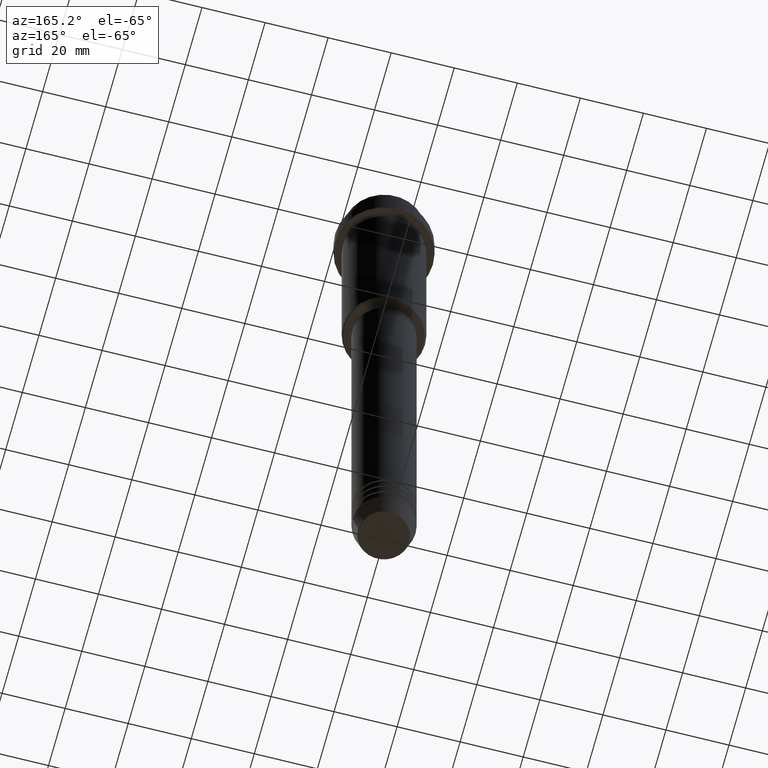
[diagram: clean part render]
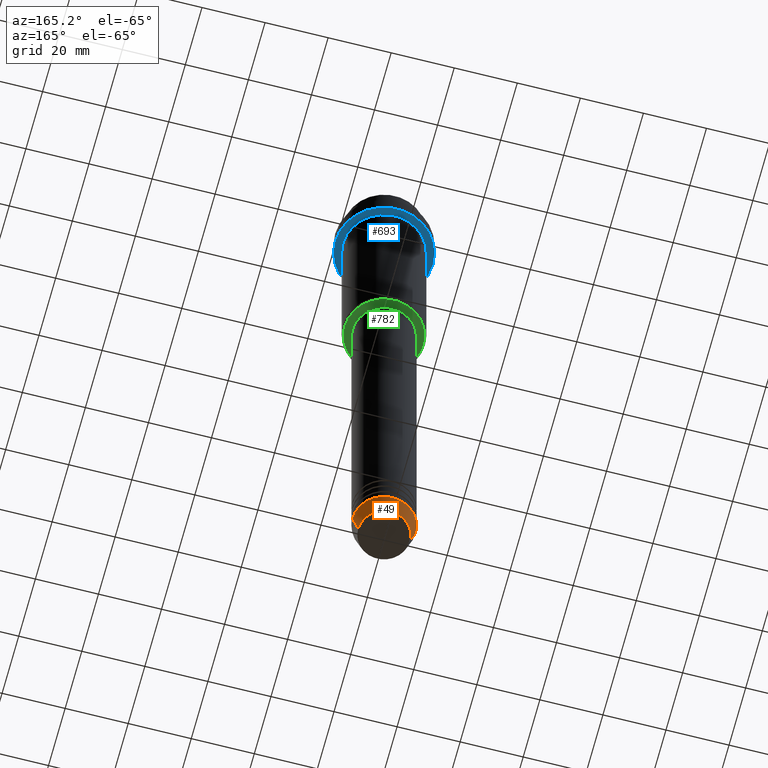
[diagram: same view with three faces highlighted in distinct colors, each labeled with its STEP entity id]
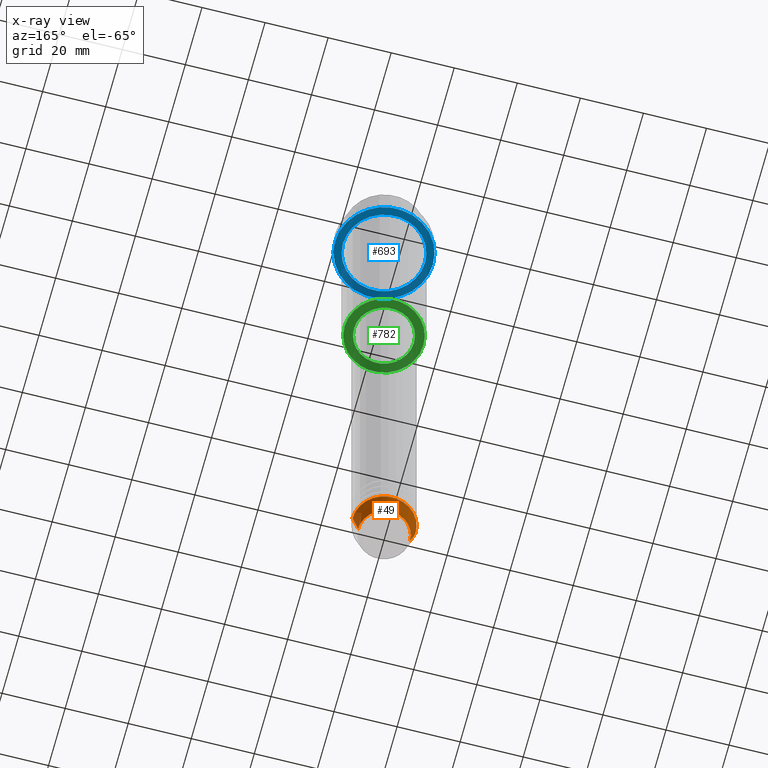
[diagram: x-ray of the same camera — body ghosted, the three highlighted faces saturated]
A machine part, auxiliary view with three faces highlighted in distinct colors.
The next image is the same camera in x-ray (body ghosted, the three faces saturated) — at least one of them is partly hidden behind the body in this view.
Their STEP definitions:

[orange] entity #49 — the highlighted conical surface has half-angle 15 deg.
#49 = ADVANCED_FACE ( 'NONE', ( #1083 ), #1212, .T. ) ;
#68 = VECTOR ( 'NONE', #1221, 1000.000000000000114 ) ;
#85 = ORIENTED_EDGE ( 'NONE', *, *, #961, .T. ) ;
#86 = EDGE_CURVE ( 'NONE', #666, #1099, #755, .T. ) ;
#88 = AXIS2_PLACEMENT_3D ( 'NONE', #519, #979, #554 ) ;
#148 = DIRECTION ( 'NONE',  ( 1.000000000000000000, 0.000000000000000000, 0.000000000000000000 ) ) ;
#198 = AXIS2_PLACEMENT_3D ( 'NONE', #1034, #1247, #1366 ) ;
#236 = CARTESIAN_POINT ( 'NONE',  ( 10.00000000000000000, 0.000000000000000000, -212.9999999999999716 ) ) ;
#318 = ORIENTED_EDGE ( 'NONE', *, *, #1256, .T. ) ;
#519 = CARTESIAN_POINT ( 'NONE',  ( 0.000000000000000000, 0.000000000000000000, -212.9999999999999716 ) ) ;
#525 = DIRECTION ( 'NONE',  ( 0.2588190451025214611, 0.000000000000000000, 0.9659258262890679791 ) ) ;
#554 = DIRECTION ( 'NONE',  ( 1.000000000000000000, 0.000000000000000000, 0.000000000000000000 ) ) ;
#569 = CIRCLE ( 'NONE', #198, 8.223655072137189492 ) ;
#602 = CARTESIAN_POINT ( 'NONE',  ( 10.00000000000000000, 0.000000000000000000, -212.9999999999999716 ) ) ;
#639 = VECTOR ( 'NONE', #525, 1000.000000000000114 ) ;
#665 = VERTEX_POINT ( 'NONE', #862 ) ;
#666 = VERTEX_POINT ( 'NONE', #602 ) ;
#755 = CIRCLE ( 'NONE', #924, 10.00000000000000000 ) ;
#796 = CARTESIAN_POINT ( 'NONE',  ( -10.00000000000000000, 1.224646799147353256E-15, -212.9999999999999716 ) ) ;
#838 = EDGE_CURVE ( 'NONE', #665, #666, #1304, .T. ) ;
#862 = CARTESIAN_POINT ( 'NONE',  ( 8.223655072137189492, 0.000000000000000000, -219.6294095225512137 ) ) ;
#916 = ORIENTED_EDGE ( 'NONE', *, *, #838, .F. ) ;
#924 = AXIS2_PLACEMENT_3D ( 'NONE', #1109, #1025, #148 ) ;
#961 = EDGE_CURVE ( 'NONE', #665, #1190, #569, .T. ) ;
#979 = DIRECTION ( 'NONE',  ( -0.000000000000000000, -0.000000000000000000, 1.000000000000000000 ) ) ;
#1025 = DIRECTION ( 'NONE',  ( -0.000000000000000000, -0.000000000000000000, 1.000000000000000000 ) ) ;
#1034 = CARTESIAN_POINT ( 'NONE',  ( 0.000000000000000000, 0.000000000000000000, -219.6294095225512137 ) ) ;
#1083 = FACE_OUTER_BOUND ( 'NONE', #1394, .T. ) ;
#1099 = VERTEX_POINT ( 'NONE', #1391 ) ;
#1109 = CARTESIAN_POINT ( 'NONE',  ( 0.000000000000000000, 0.000000000000000000, -212.9999999999999716 ) ) ;
#1190 = VERTEX_POINT ( 'NONE', #1298 ) ;
#1212 = CONICAL_SURFACE ( 'NONE', #88, 10.00000000000000000, 0.2617993877991502405 ) ;
#1221 = DIRECTION ( 'NONE',  ( -0.2588190451025214611, 3.169619151431774186E-17, 0.9659258262890679791 ) ) ;
#1247 = DIRECTION ( 'NONE',  ( -0.000000000000000000, -0.000000000000000000, 1.000000000000000000 ) ) ;
#1256 = EDGE_CURVE ( 'NONE', #1190, #1099, #1325, .T. ) ;
#1298 = CARTESIAN_POINT ( 'NONE',  ( -8.223655072137189492, 1.115877042642911856E-15, -219.6294095225512137 ) ) ;
#1304 = LINE ( 'NONE', #236, #639 ) ;
#1325 = LINE ( 'NONE', #796, #68 ) ;
#1350 = ORIENTED_EDGE ( 'NONE', *, *, #86, .F. ) ;
#1366 = DIRECTION ( 'NONE',  ( 1.000000000000000000, 0.000000000000000000, 0.000000000000000000 ) ) ;
#1391 = CARTESIAN_POINT ( 'NONE',  ( -10.00000000000000000, 1.224646799147353256E-15, -212.9999999999999716 ) ) ;
#1394 = EDGE_LOOP ( 'NONE', ( #85, #318, #1350, #916 ) ) ;

[blue] entity #693 — the highlighted planar face has unit normal (0, 0, -1).
#12 = VERTEX_POINT ( 'NONE', #946 ) ;
#39 = CIRCLE ( 'NONE', #565, 15.50000000000000000 ) ;
#72 = VERTEX_POINT ( 'NONE', #126 ) ;
#83 = DIRECTION ( 'NONE',  ( -0.000000000000000000, -0.000000000000000000, 1.000000000000000000 ) ) ;
#87 = CARTESIAN_POINT ( 'NONE',  ( 0.000000000000000000, 15.50000000000000000, -15.00000000000000000 ) ) ;
#108 = AXIS2_PLACEMENT_3D ( 'NONE', #87, #1178, #599 ) ;
#126 = CARTESIAN_POINT ( 'NONE',  ( -15.50000000000000000, 1.898202538678397557E-15, -15.00000000000000000 ) ) ;
#177 = CARTESIAN_POINT ( 'NONE',  ( 0.000000000000000000, 0.000000000000000000, -15.00000000000000000 ) ) ;
#187 = CARTESIAN_POINT ( 'NONE',  ( 12.99999999999999645, 1.592040838891558701E-15, -15.00000000000000000 ) ) ;
#199 = AXIS2_PLACEMENT_3D ( 'NONE', #1054, #944, #478 ) ;
#201 = ORIENTED_EDGE ( 'NONE', *, *, #296, .T. ) ;
#230 = EDGE_LOOP ( 'NONE', ( #201, #295 ) ) ;
#293 = DIRECTION ( 'NONE',  ( -1.000000000000000000, 0.000000000000000000, 0.000000000000000000 ) ) ;
#295 = ORIENTED_EDGE ( 'NONE', *, *, #715, .T. ) ;
#296 = EDGE_CURVE ( 'NONE', #12, #321, #925, .T. ) ;
#321 = VERTEX_POINT ( 'NONE', #187 ) ;
#384 = EDGE_CURVE ( 'NONE', #669, #72, #39, .T. ) ;
#478 = DIRECTION ( 'NONE',  ( 1.000000000000000000, 0.000000000000000000, 0.000000000000000000 ) ) ;
#497 = CARTESIAN_POINT ( 'NONE',  ( 15.50000000000000000, 0.000000000000000000, -15.00000000000000000 ) ) ;
#565 = AXIS2_PLACEMENT_3D ( 'NONE', #1296, #1292, #1097 ) ;
#567 = AXIS2_PLACEMENT_3D ( 'NONE', #177, #607, #1395 ) ;
#599 = DIRECTION ( 'NONE',  ( -1.000000000000000000, 0.000000000000000000, -0.000000000000000000 ) ) ;
#607 = DIRECTION ( 'NONE',  ( -0.000000000000000000, -0.000000000000000000, 1.000000000000000000 ) ) ;
#634 = AXIS2_PLACEMENT_3D ( 'NONE', #1056, #83, #293 ) ;
#669 = VERTEX_POINT ( 'NONE', #497 ) ;
#690 = ORIENTED_EDGE ( 'NONE', *, *, #384, .F. ) ;
#693 = ADVANCED_FACE ( 'NONE', ( #965, #738 ), #713, .T. ) ;
#713 = PLANE ( 'NONE',  #108 ) ;
#715 = EDGE_CURVE ( 'NONE', #321, #12, #1172, .T. ) ;
#738 = FACE_OUTER_BOUND ( 'NONE', #1407, .T. ) ;
#925 = CIRCLE ( 'NONE', #634, 12.99999999999999645 ) ;
#944 = DIRECTION ( 'NONE',  ( -0.000000000000000000, -0.000000000000000000, 1.000000000000000000 ) ) ;
#946 = CARTESIAN_POINT ( 'NONE',  ( -12.99999999999999645, 0.000000000000000000, -15.00000000000000000 ) ) ;
#965 = FACE_BOUND ( 'NONE', #230, .T. ) ;
#1054 = CARTESIAN_POINT ( 'NONE',  ( 0.000000000000000000, 0.000000000000000000, -15.00000000000000000 ) ) ;
#1056 = CARTESIAN_POINT ( 'NONE',  ( 0.000000000000000000, 0.000000000000000000, -15.00000000000000000 ) ) ;
#1097 = DIRECTION ( 'NONE',  ( 1.000000000000000000, 0.000000000000000000, 0.000000000000000000 ) ) ;
#1172 = CIRCLE ( 'NONE', #567, 12.99999999999999645 ) ;
#1178 = DIRECTION ( 'NONE',  ( 0.000000000000000000, 0.000000000000000000, -1.000000000000000000 ) ) ;
#1292 = DIRECTION ( 'NONE',  ( -0.000000000000000000, -0.000000000000000000, 1.000000000000000000 ) ) ;
#1296 = CARTESIAN_POINT ( 'NONE',  ( 0.000000000000000000, 0.000000000000000000, -15.00000000000000000 ) ) ;
#1375 = ORIENTED_EDGE ( 'NONE', *, *, #1403, .F. ) ;
#1393 = CIRCLE ( 'NONE', #199, 15.50000000000000000 ) ;
#1395 = DIRECTION ( 'NONE',  ( -1.000000000000000000, 0.000000000000000000, 0.000000000000000000 ) ) ;
#1403 = EDGE_CURVE ( 'NONE', #72, #669, #1393, .T. ) ;
#1407 = EDGE_LOOP ( 'NONE', ( #690, #1375 ) ) ;

[green] entity #782 — the highlighted planar face has unit normal (0, 0, -1).
#29 = DIRECTION ( 'NONE',  ( 0.000000000000000000, 0.000000000000000000, -1.000000000000000000 ) ) ;
#31 = ORIENTED_EDGE ( 'NONE', *, *, #1144, .T. ) ;
#34 = EDGE_LOOP ( 'NONE', ( #31, #1388 ) ) ;
#76 = PLANE ( 'NONE',  #1040 ) ;
#82 = CARTESIAN_POINT ( 'NONE',  ( 0.000000000000000000, 13.00000000000000000, -74.99999999999998579 ) ) ;
#161 = CARTESIAN_POINT ( 'NONE',  ( 0.000000000000000000, 0.000000000000000000, -74.99999999999998579 ) ) ;
#162 = DIRECTION ( 'NONE',  ( -0.000000000000000000, -0.000000000000000000, 1.000000000000000000 ) ) ;
#180 = DIRECTION ( 'NONE',  ( 0.000000000000000000, 0.000000000000000000, -1.000000000000000000 ) ) ;
#225 = VERTEX_POINT ( 'NONE', #902 ) ;
#259 = VERTEX_POINT ( 'NONE', #468 ) ;
#270 = EDGE_CURVE ( 'NONE', #259, #1338, #1261, .T. ) ;
#281 = FACE_OUTER_BOUND ( 'NONE', #34, .T. ) ;
#348 = DIRECTION ( 'NONE',  ( 0.000000000000000000, 0.000000000000000000, -1.000000000000000000 ) ) ;
#396 = CIRCLE ( 'NONE', #1217, 12.50000000000001066 ) ;
#440 = CIRCLE ( 'NONE', #1174, 9.499999999999996447 ) ;
#468 = CARTESIAN_POINT ( 'NONE',  ( -9.499999999999996447, 1.163414459189985091E-15, -74.99999999999998579 ) ) ;
#484 = AXIS2_PLACEMENT_3D ( 'NONE', #161, #1053, #619 ) ;
#489 = AXIS2_PLACEMENT_3D ( 'NONE', #1333, #29, #866 ) ;
#557 = EDGE_LOOP ( 'NONE', ( #1175, #1287 ) ) ;
#562 = VERTEX_POINT ( 'NONE', #622 ) ;
#619 = DIRECTION ( 'NONE',  ( 1.000000000000000000, 0.000000000000000000, 0.000000000000000000 ) ) ;
#622 = CARTESIAN_POINT ( 'NONE',  ( 12.50000000000001066, 0.000000000000000000, -74.99999999999998579 ) ) ;
#728 = FACE_BOUND ( 'NONE', #557, .T. ) ;
#782 = ADVANCED_FACE ( 'NONE', ( #281, #728 ), #76, .T. ) ;
#814 = DIRECTION ( 'NONE',  ( 1.000000000000000000, 0.000000000000000000, 0.000000000000000000 ) ) ;
#866 = DIRECTION ( 'NONE',  ( -1.000000000000000000, 0.000000000000000000, 0.000000000000000000 ) ) ;
#902 = CARTESIAN_POINT ( 'NONE',  ( -12.50000000000001066, 1.561424668912876097E-15, -74.99999999999998579 ) ) ;
#920 = EDGE_CURVE ( 'NONE', #225, #562, #1018, .T. ) ;
#930 = CARTESIAN_POINT ( 'NONE',  ( 0.000000000000000000, 0.000000000000000000, -74.99999999999998579 ) ) ;
#960 = CARTESIAN_POINT ( 'NONE',  ( 0.000000000000000000, 0.000000000000000000, -74.99999999999998579 ) ) ;
#1001 = EDGE_CURVE ( 'NONE', #1338, #259, #440, .T. ) ;
#1018 = CIRCLE ( 'NONE', #489, 12.50000000000001066 ) ;
#1028 = DIRECTION ( 'NONE',  ( -1.000000000000000000, 0.000000000000000000, -0.000000000000000000 ) ) ;
#1040 = AXIS2_PLACEMENT_3D ( 'NONE', #82, #348, #1028 ) ;
#1053 = DIRECTION ( 'NONE',  ( -0.000000000000000000, -0.000000000000000000, 1.000000000000000000 ) ) ;
#1144 = EDGE_CURVE ( 'NONE', #562, #225, #396, .T. ) ;
#1174 = AXIS2_PLACEMENT_3D ( 'NONE', #930, #162, #814 ) ;
#1175 = ORIENTED_EDGE ( 'NONE', *, *, #1001, .T. ) ;
#1217 = AXIS2_PLACEMENT_3D ( 'NONE', #960, #180, #1380 ) ;
#1261 = CIRCLE ( 'NONE', #484, 9.499999999999996447 ) ;
#1287 = ORIENTED_EDGE ( 'NONE', *, *, #270, .T. ) ;
#1333 = CARTESIAN_POINT ( 'NONE',  ( 0.000000000000000000, 0.000000000000000000, -74.99999999999998579 ) ) ;
#1338 = VERTEX_POINT ( 'NONE', #1416 ) ;
#1380 = DIRECTION ( 'NONE',  ( -1.000000000000000000, 0.000000000000000000, 0.000000000000000000 ) ) ;
#1388 = ORIENTED_EDGE ( 'NONE', *, *, #920, .T. ) ;
#1416 = CARTESIAN_POINT ( 'NONE',  ( 9.499999999999996447, 0.000000000000000000, -74.99999999999998579 ) ) ;